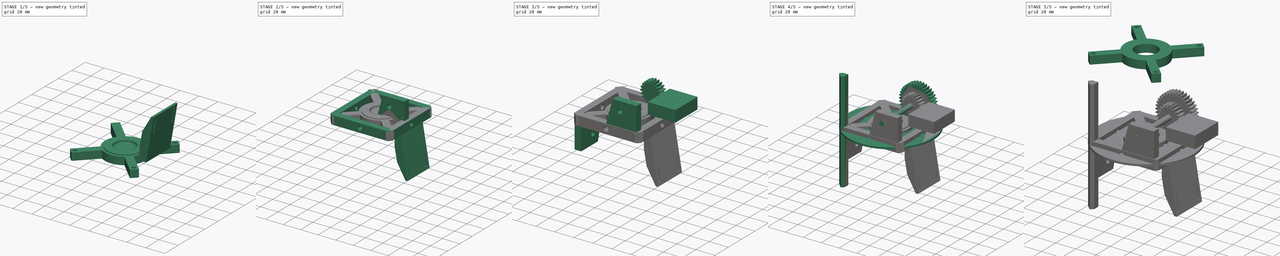
[diagram: build sequence overview — one tinted view per stage of 5, left to right]
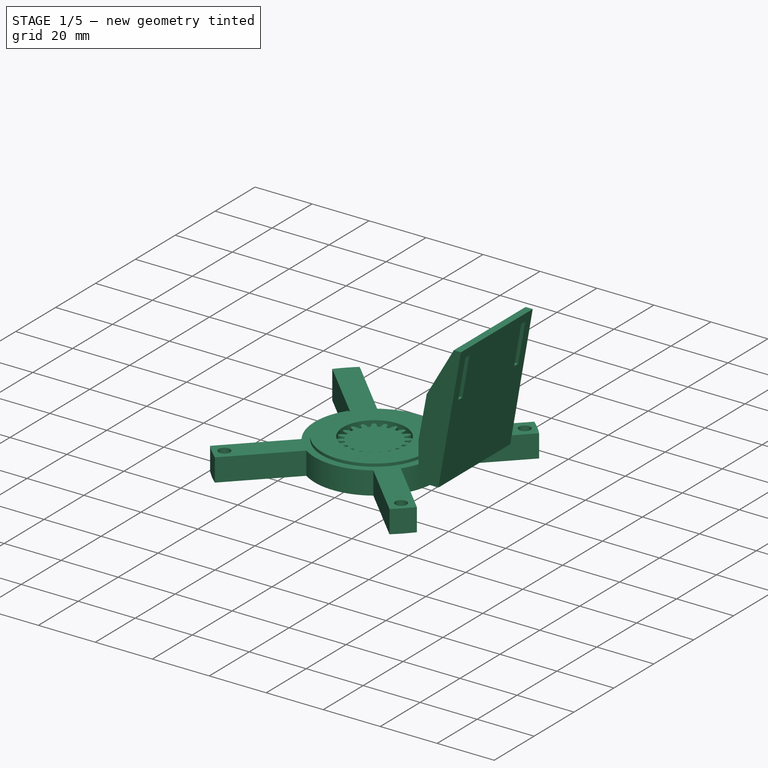
[diagram: stage 1 of 5 — iso view after this stage's code; geometry added in this stage tinted green]
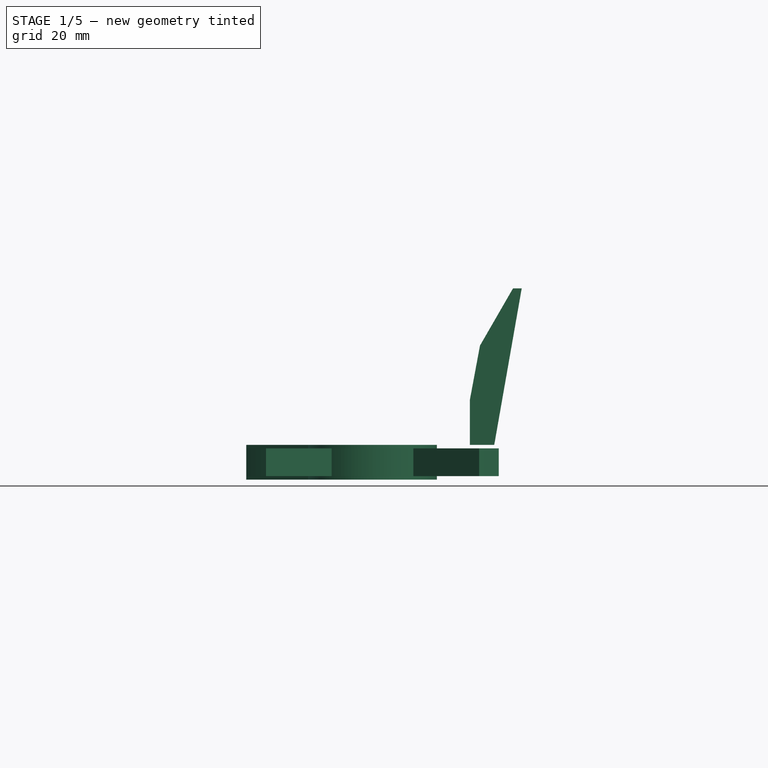
[diagram: stage 1 of 5 — front view after this stage's code; geometry added in this stage tinted green]
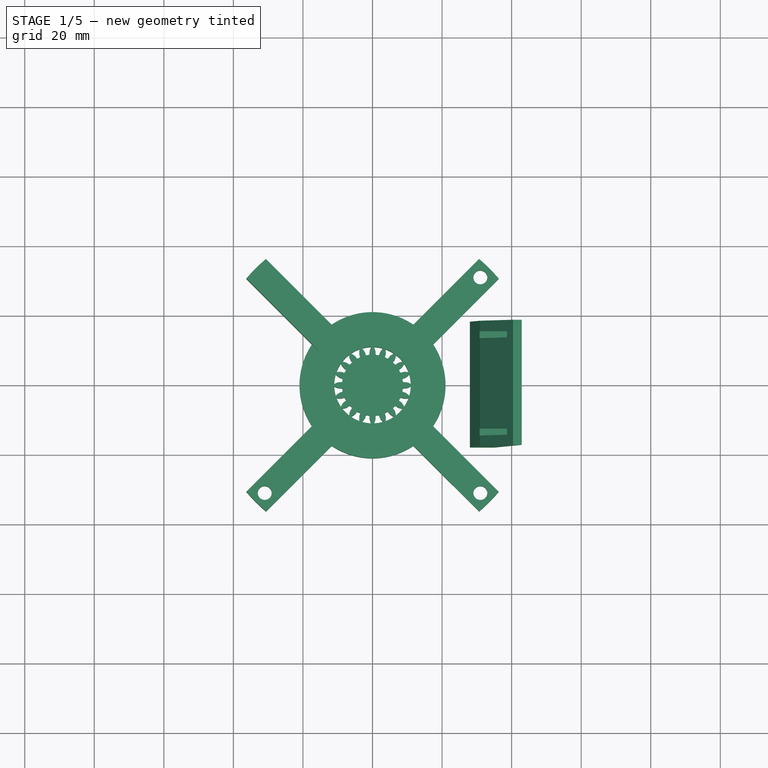
[diagram: stage 1 of 5 — top view after this stage's code; geometry added in this stage tinted green]
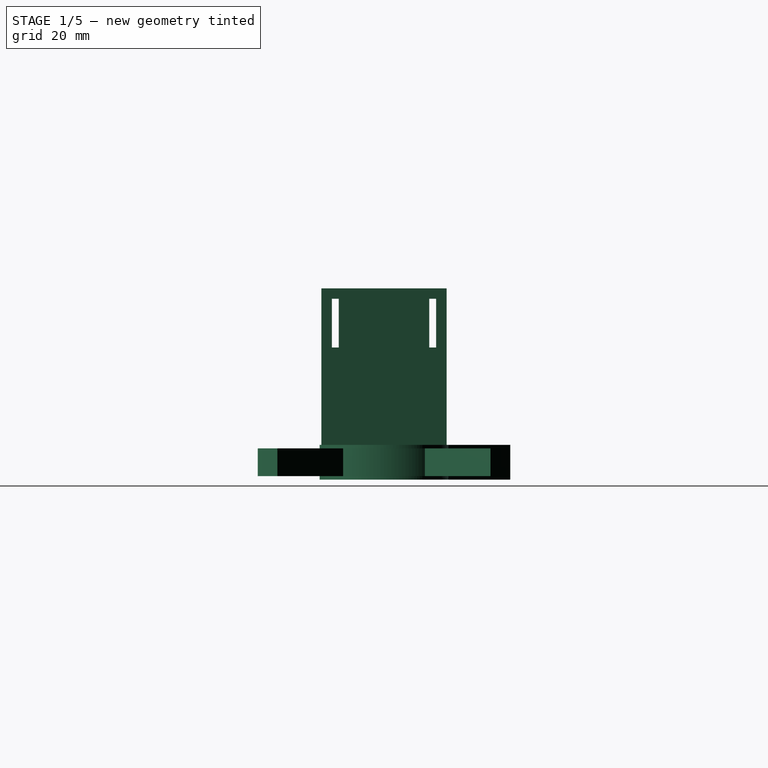
[diagram: stage 1 of 5 — right view after this stage's code; geometry added in this stage tinted green]
FCSTD DOCUMENT  (FreeCAD 0.21R33668 +26 (Git))
Label: capsule_support_engrenages_ailerons
License: All rights reserved
LicenseURL: http://en.wikipedia.org/wiki/All_rights_reserved
objects: PartDesign::Body×28, Sketcher::SketchObject×16, PartDesign::Pad×14, PartDesign::FeatureBase×14, PartDesign::Pocket×9, Part::Part2DObjectPython×7, App::Part×5, Part::Cylinder×2, Part::Box×2, App::DocumentObjectGroup×1, PartDesign::PolarPattern×1
note: 116 computed .brp shape members not serialized (recipe doc carries the construction recipe); baked Part::Feature solids carry a one-line shape summary decoded from their .brp

FEATURE [Sketcher::SketchObject] Sketch003
  FullyConstrained = true
  MapMode = 5
  Placement = pos=(-35,0,0) rot=(0,1,0;1.5708rad)
  sketch-geometry (1):
    g0: Circle CenterX=0 CenterY=0 CenterZ=0 NormalX=0 NormalY=0 NormalZ=1 AngleXU=0 Radius=2.5
  constraints (2):
    c: Coincident(g0,g-1)
    c: Radius(g0) = 2.5
FEATURE [Sketcher::SketchObject] Sketch004
  FullyConstrained = true
  MapMode = 5
  Placement = pos=(0,34.5,0) rot=(0,0.707107,0.707107;3.14159rad)
  sketch-geometry (1):
    g0: Circle CenterX=0 CenterY=0 CenterZ=0 NormalX=0 NormalY=0 NormalZ=1 AngleXU=0 Radius=2.5
  constraints (2):
    c: Coincident(g0,g-1)
    c: Radius(g0) = 2.5
FEATURE [Sketcher::SketchObject] Sketch011
  FullyConstrained = true
  MapMode = 5
  Support = -> [XY_Plane007]
  sketch-geometry (16):
    g0: ArcOfCircle CenterX=0 CenterY=0 CenterZ=0 NormalX=0 NormalY=0 NormalZ=1 AngleXU=0 Radius=21 StartAngle=5.68943 EndAngle=6.87694
    g1: LineSegment StartX=-30.6398 StartY=36.2967 StartZ=0 EndX=-11.749 EndY=17.4058 EndZ=0
    g2: LineSegment StartX=-36.2967 StartY=30.6398 StartZ=0 EndX=-17.4058 EndY=11.749 EndZ=0
    g3: LineSegment StartX=-36.2967 StartY=-30.6398 StartZ=0 EndX=-17.4058 EndY=-11.749 EndZ=0
    g4: LineSegment StartX=36.2967 StartY=30.6398 StartZ=0 EndX=17.4058 EndY=11.749 EndZ=0
    g5: LineSegment StartX=-11.749 StartY=-17.4058 StartZ=0 EndX=-30.6398 EndY=-36.2967 EndZ=0
    g6: LineSegment StartX=11.749 StartY=-17.4058 StartZ=0 EndX=30.6398 EndY=-36.2967 EndZ=0
    g7: LineSegment StartX=17.4058 StartY=-11.749 StartZ=0 EndX=36.2967 EndY=-30.6398 EndZ=0
    g8: ArcOfCircle CenterX=0 CenterY=0 CenterZ=0 NormalX=0 NormalY=0 NormalZ=1 AngleXU=0 Radius=21 StartAngle=0.977045 EndAngle=2.16455
    g9: LineSegment StartX=11.749 StartY=17.4058 StartZ=0 EndX=30.6398 EndY=36.2967 EndZ=0
    g10: ArcOfCircle CenterX=0 CenterY=0 CenterZ=0 NormalX=0 NormalY=0 NormalZ=1 AngleXU=0 Radius=21 StartAngle=2.54784 EndAngle=3.73534
    g11: ArcOfCircle CenterX=0 CenterY=0 CenterZ=0 NormalX=0 NormalY=0 NormalZ=1 AngleXU=0 Radius=21 StartAngle=4.11864 EndAngle=5.30614
    g12: ArcOfCircle CenterX=0 CenterY=0 CenterZ=0 NormalX=0 NormalY=0 NormalZ=1 AngleXU=0 Radius=47.5 StartAngle=3.84268 EndAngle=4.0113
    g13: ArcOfCircle CenterX=0 CenterY=0 CenterZ=0 NormalX=0 NormalY=0 NormalZ=1 AngleXU=0 Radius=47.5 StartAngle=5.41348 EndAngle=5.5821
    g14: ArcOfCircle CenterX=0 CenterY=0 CenterZ=0 NormalX=0 NormalY=0 NormalZ=1 AngleXU=0 Radius=47.5 StartAngle=0.701088 EndAngle=0.869709
    g15: ArcOfCircle CenterX=0 CenterY=0 CenterZ=0 NormalX=0 NormalY=0 NormalZ=1 AngleXU=0 Radius=47.5 StartAngle=2.27188 EndAngle=2.4405
  constraints (51):
    c: Radius(g0) = 21
    c: PointOnObject(g1,g0)
    c: PointOnObject(g2,g0)
    c: PointOnObject(g3,g0)
    c: PointOnObject(g5,g0)
    c: Coincident(g11,g6)
    c: Coincident(g0,g7)
    c: Coincident(g0,g8)
    c: Coincident(g4,g0)
    c: Coincident(g9,g8)
    c: Equal(g8,g10)
    c: PointOnObject(g8,g1)
    c: PointOnObject(g10,g2)
    c: Coincident(g8,g10)
    c: PointOnObject(g10,g3)
    c: PointOnObject(g11,g5)
    c: Coincident(g10,g11)
    c: Parallel(g2,g1)
    c: Parallel(g9,g4)
    c: Parallel(g3,g5)
    c: Parallel(g6,g7)
    c: Distance(g2,g1) = 8
    c: Distance(g9,g4) = 8
    c: Distance(g3,g5) = 8
    c: Distance(g6,g7) = 8
    c: Coincident(g0,g-1)
    c: Coincident(g12,g0)
    c: Radius(g12) = 47.5
    c: PointOnObject(g7,g12)
    c: Angle(g-2,g9) = 2.35619
    c: Angle(g1,g-2) = 2.35619
    c: Angle(g-1,g7) = 2.35619
    c: Angle(g3,g-1) = 2.35619
    c: Symmetric(g1,g8,g-2)
    c: Symmetric(g5,g6,g-2)
    c: Symmetric(g0,g0,g-1)
    c: Equal(g12,g13)
    c: Coincident(g13,g6)
    c: Coincident(g12,g13)
    c: Equal(g13,g14)
    c: PointOnObject(g13,g7)
    c: Coincident(g13,g14)
    c: Equal(g14,g15)
    c: Coincident(g14,g15)
    c: Coincident(g2,g15)
    c: Coincident(g4,g14)
    c: Coincident(g9,g14)
    c: Coincident(g3,g12)
    c: Coincident(g5,g12)
    c: Equal(g2,g1)
    c: Coincident(g15,g1)
FEATURE [PartDesign::Pad] Pad002
  Direction = (0,0,1)
  Length = 8
  Length2 = 10
  Midplane = true
  Profile = -> Sketch011
  ReferenceAxis = -> Sketch011 [N_Axis]
  Type = 0
FEATURE [Sketcher::SketchObject] Sketch012
  FullyConstrained = true
  MapMode = 5
  Support = -> [XY_Plane007]
  sketch-geometry (1):
    g0: Circle CenterX=0 CenterY=0 CenterZ=0 NormalX=0 NormalY=0 NormalZ=1 AngleXU=0 Radius=11
  constraints (2):
    c: Coincident(g0,g-1)
    c: Radius(g0) = 11
FEATURE [PartDesign::Pocket] Pocket008
  BaseFeature = -> Pad002
  Direction = (0,0,-1)
  Length = 5
  Length2 = 5
  Midplane = true
  Profile = -> Sketch012
  ReferenceAxis = -> Sketch012 [N_Axis]
  Type = 1
FEATURE [PartDesign::Body] Body  label="Cadre extérieur"
  Group = -> [Sketch,Pad,Sketch003,Sketch004,Sketch017,Pocket,Pocket010,Pocket011]
  Origin = -> Origin
  Tip = -> Pocket011
FEATURE [Sketcher::SketchObject] Sketch018
  FullyConstrained = true
  MapMode = 5
  Placement = pos=(0,0,0) rot=(1,0,0;1.5708rad)
  Support = -> [XZ_Plane048]
  sketch-geometry (6):
    g0: LineSegment StartX=28 StartY=5 StartZ=0 EndX=35 EndY=5 EndZ=0
    g1: LineSegment StartX=28 StartY=5 StartZ=0 EndX=28 EndY=18 EndZ=0
    g2: LineSegment StartX=28 StartY=18 StartZ=0 EndX=30.9 EndY=33.5455 EndZ=0
    g3: LineSegment StartX=30.9 StartY=33.5455 StartZ=0 EndX=40.4 EndY=50 EndZ=0
    g4: LineSegment StartX=42.9 StartY=50 StartZ=0 EndX=35 EndY=5 EndZ=0
    g5: LineSegment StartX=42.9 StartY=50 StartZ=0 EndX=40.4 EndY=50 EndZ=0
  constraints (18):
    c: Horizontal(g0)
    c: Distance(g0,g-2) = 28
    c: Distance(g0,g0) = 7
    c: Distance(g0,g-1) = 5
    c: Coincident(g1,g0)
    c: Vertical(g1)
    c: DistanceY(g1,g1) = 13
    c: Coincident(g2,g1)
    c: Coincident(g4,g0)
    c: Coincident(g5,g4)
    c: Coincident(g5,g3)
    c: Horizontal(g5)
    c: Distance(g3,g-1) = 50
    c: DistanceX(g5,g5) = 2.5
    c: Angle(g3,g-2) = 0.523599
    c: Distance(g3,g-2) = 40.4
    c: Distance(g3) = 19
    c: Coincident(g2,g3)
FEATURE [PartDesign::Pad] Pad014
  Direction = (0,-1,-2e-16)
  Length = 36
  Length2 = 10
  Midplane = true
  Placement = pos=(0,0,0) rot=(1,0,0;1.5708rad)
  Profile = -> Sketch018
  ReferenceAxis = -> Sketch018 [N_Axis]
  Type = 0
FEATURE [Sketcher::SketchObject] Sketch019
  FullyConstrained = true
  MapMode = 5
  Support = -> [XY_Plane052]
  sketch-geometry (5):
    g0: ArcOfCircle CenterX=0 CenterY=0 CenterZ=0 NormalX=0 NormalY=0 NormalZ=1 AngleXU=0 Radius=47.5 StartAngle=2.27188 EndAngle=2.4405
    g1: ArcOfCircle CenterX=0 CenterY=0 CenterZ=0 NormalX=0 NormalY=0 NormalZ=1 AngleXU=0 Radius=18.5 StartAngle=2.57413 EndAngle=8.42144
    g2: Circle CenterX=0 CenterY=0 CenterZ=0 NormalX=0 NormalY=0 NormalZ=1 AngleXU=0 Radius=11
    g3: LineSegment StartX=-30.6398 StartY=36.2967 StartZ=0 EndX=-9.94361 EndY=15.6005 EndZ=0
    g4: LineSegment StartX=-36.2967 StartY=30.6398 StartZ=0 EndX=-15.6005 EndY=9.94361 EndZ=0
  constraints (14):
    c: Coincident(g0,g-1)
    c: Radius(g0) = 47.5
    c: Coincident(g1,g0)
    c: Radius(g1) = 18.5
    c: Coincident(g2,g0)
    c: Radius(g2) = 11
    c: Coincident(g1,g4)
    c: Coincident(g1,g3)
    c: Coincident(g0,g4)
    c: Coincident(g0,g3)
    c: Angle(g-2,g4) = 0.785398
    c: Distance(g0,g0) = 8
    c: Angle(g3,g-2) = 2.35619
    c: Equal(g4,g3)
FEATURE [PartDesign::Pad] Pad015
  Direction = (0,0,1)
  Length = 10
  Length2 = 10
  Midplane = true
  Profile = -> Sketch019
  ReferenceAxis = -> Sketch019 [N_Axis]
  Type = 0
FEATURE [PartDesign::Body] Body044  label="Cadre intérieur"
  Group = -> [Sketch019,Pad015,Sketch020,Pocket012,Sketch021,Pocket013]
  Origin = -> Origin050
  Tip = -> Pocket013
FEATURE [Part::Part2DObjectPython] InvoluteGear007  # Draft 2D object (typed FeaturePython)
  AddendumCoefficient = 1
  DedendumCoefficient = 1.25
  ExternalGear = true
  HighPrecision = true
  Modules = 1
  NumberOfTeeth = 20
  PressureAngle = 20
  ProfileShiftCoefficient = 0
  RootFilletCoefficient = 0.375
FEATURE [PartDesign::Pad] Pad012
  Direction = (0,0,1)
  Length = 8
  Length2 = 10
  Midplane = true
  Profile = -> InvoluteGear007
  ReferenceAxis = -> InvoluteGear007 [N_Axis]
  Type = 0
FEATURE [PartDesign::Body] Body037  label="EngrenageA009"
  BaseFeature = -> Body036
  Group = -> [Clone013]
  Origin = -> Origin041
  Placement = pos=(42,-10,0) rot=(0,0,1;1.5708rad)
  Tip = -> Clone013
FEATURE [App::Part] Part003  label="Servo003"
  Group = -> [Box001,Body037]
  Origin = -> Origin042
  Placement = pos=(25,0,-2) rot=(0,1,0;-1.0472rad)
FEATURE [App::Part] Part002
  Group = -> [Body031,Body032,Body033,Body034,Body035,Cylinder001,Body036,Part003]
  Origin = -> Origin034
  Placement = pos=(0,0,0) rot=(0,0,1;1.5708rad)
FEATURE [App::Part] Part004  label="Ailerons CD"
  Group = -> [Part002]
  Origin = -> Origin043
  Placement = pos=(0,0,0) rot=(1,0,0;3.14159rad)
FEATURE [Sketcher::SketchObject] Sketch022
  FullyConstrained = true
  MapMode = 5
  Placement = pos=(0,0,0) rot=(0.57735,0.57735,0.57735;2.0944rad)
  Support = -> [YZ_Plane048]
  sketch-geometry (10):
    g0: LineSegment StartX=-13 StartY=47 StartZ=0 EndX=-13 EndY=33 EndZ=0
    g1: LineSegment StartX=-13 StartY=47 StartZ=0 EndX=-15 EndY=47 EndZ=0
    g2: LineSegment StartX=-15 StartY=47 StartZ=0 EndX=-15 EndY=33 EndZ=0
    g3: LineSegment StartX=-15 StartY=33 StartZ=0 EndX=-13 EndY=33 EndZ=0
    g4: LineSegment StartX=13 StartY=47 StartZ=0 EndX=15 EndY=47 EndZ=0
    g5: LineSegment StartX=15 StartY=47 StartZ=0 EndX=15 EndY=33 EndZ=0
    g6: LineSegment StartX=15 StartY=33 StartZ=0 EndX=13 EndY=33 EndZ=0
    g7: LineSegment StartX=13 StartY=33 StartZ=0 EndX=13 EndY=47 EndZ=0
    g8: GeomPoint X=15 Y=47 Z=0
    g9: GeomPoint X=-15 Y=47 Z=0
  constraints (26):
    c: Vertical(g0)
    c: Vertical(g2)
    c: Horizontal(g3)
    c: Distance(g0) = 14
    c: Horizontal(g1)
    c: Coincident(g0,g1)
    c: Distance(g1) = 2
    c: Coincident(g0,g3)
    c: Coincident(g1,g2)
    c: Coincident(g2,g3)
    c: Horizontal(g4)
    c: Vertical(g5)
    c: Horizontal(g6)
    c: Vertical(g7)
    c: Coincident(g4,g7)
    c: Coincident(g4,g5)
    c: Coincident(g5,g6)
    c: Coincident(g6,g7)
    c: Distance(g7) = 14
    c: Distance(g4) = 2
    c: Coincident(g4,g8)
    c: Coincident(g1,g9)
    c: DistanceY(g8,g9) = 0
    c: DistanceX(g9,g8) = 30
    c: DistanceX(g-1,g8) = 15
    c: DistanceY(g-1,g8) = 47
FEATURE [PartDesign::Pocket] Pocket014
  BaseFeature = -> Pad014
  Direction = (-1,2e-16,-3e-16)
  Length = 5
  Length2 = 5
  Midplane = true
  Placement = pos=(0,0,0) rot=(1,0,0;1.5708rad)
  Profile = -> Sketch022
  ReferenceAxis = -> Sketch022 [N_Axis]
  Type = 1
FEATURE [PartDesign::Body] Body043  label="Support servo 2"
  BaseFeature = -> Body042
  Group = -> [Clone017]
  Origin = -> Origin049
  Placement = pos=(0,0,0) rot=(0,0,-1;1.5708rad)
  Tip = -> Clone017
FEATURE [Sketcher::SketchObject] Sketch023
  FullyConstrained = true
  MapMode = 5
  Support = -> [XY_Plane007]
  sketch-geometry (1):
    g0: Circle CenterX=-31 CenterY=31 CenterZ=0 NormalX=0 NormalY=0 NormalZ=1 AngleXU=0 Radius=2
  constraints (3):
    c: Radius(g0) = 2
    c: DistanceX(g0,g-1) = 31
    c: DistanceY(g-1,g0) = 31
FEATURE [PartDesign::Pocket] Pocket015
  BaseFeature = -> Pocket008
  Direction = (0,0,-1)
  Length = 5
  Length2 = 5
  Midplane = true
  Profile = -> Sketch023
  ReferenceAxis = -> Sketch023 [N_Axis]
  Type = 1
FEATURE [PartDesign::PolarPattern] PolarPattern
  Angle = 360
  Axis = -> Z_Axis007
  BaseFeature = -> Pocket015
  Occurrences = 4
  Originals = -> [Pocket015]
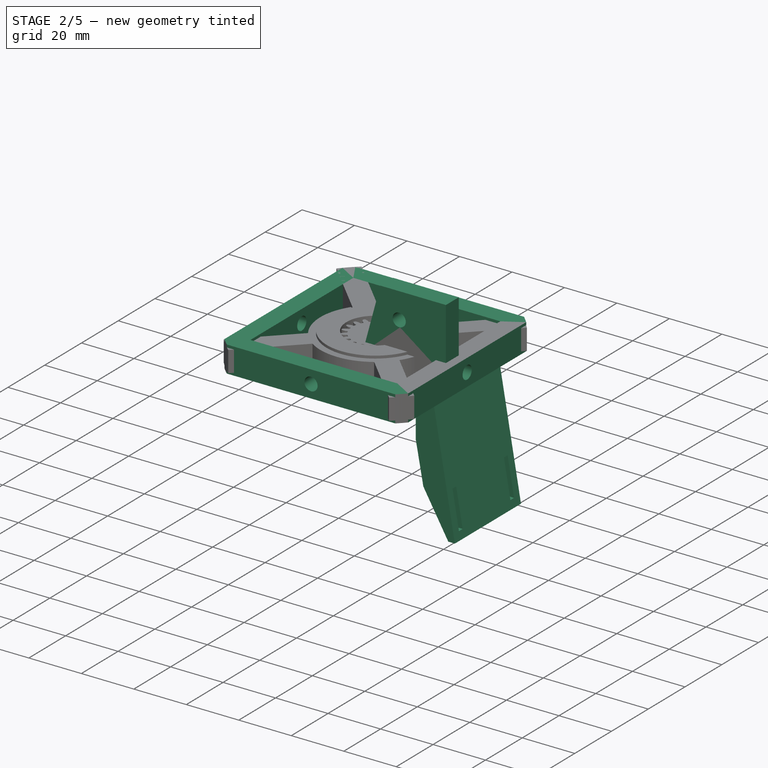
[diagram: stage 2 of 5 — iso view after this stage's code; geometry added in this stage tinted green]
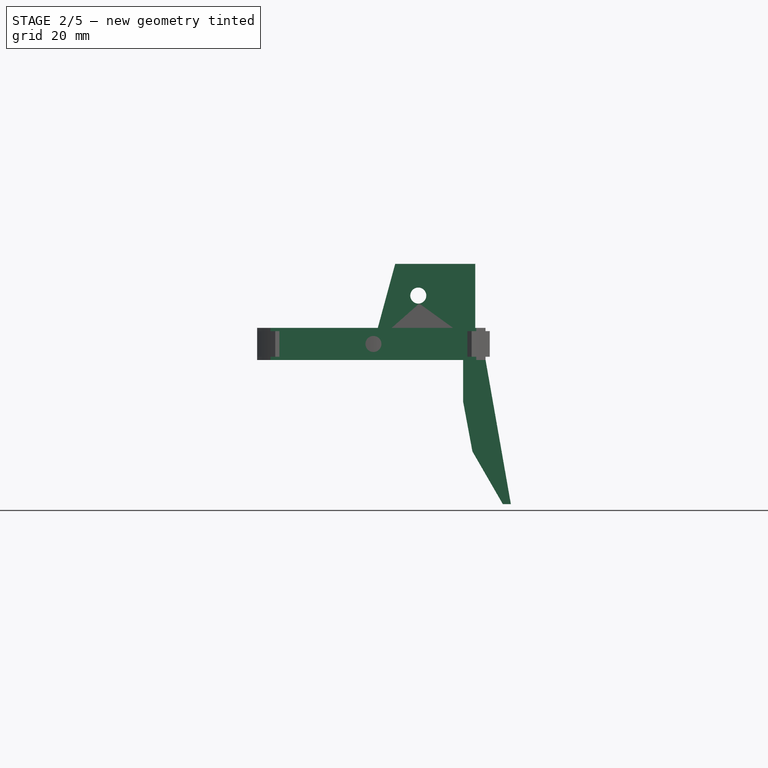
[diagram: stage 2 of 5 — front view after this stage's code; geometry added in this stage tinted green]
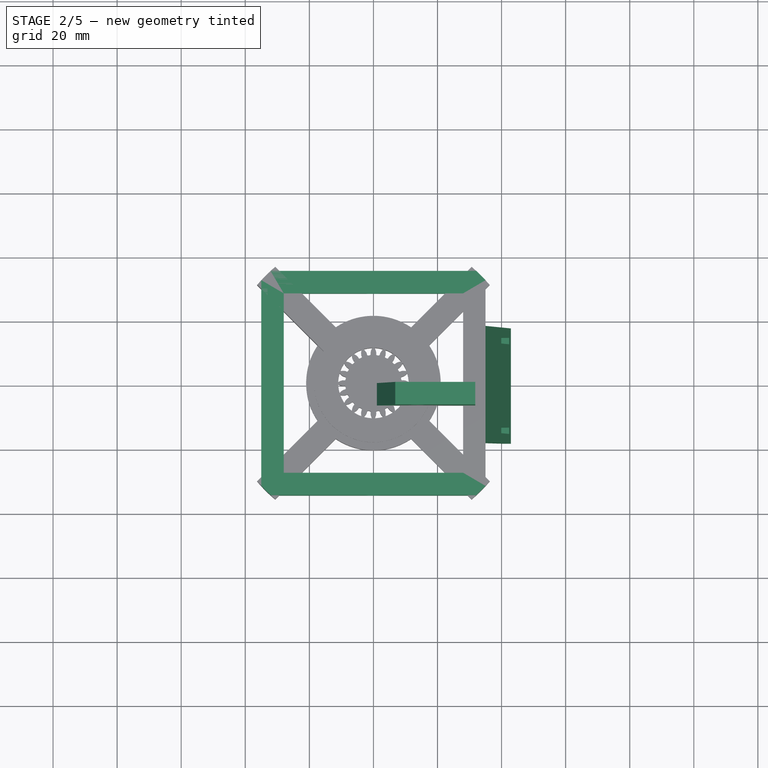
[diagram: stage 2 of 5 — top view after this stage's code; geometry added in this stage tinted green]
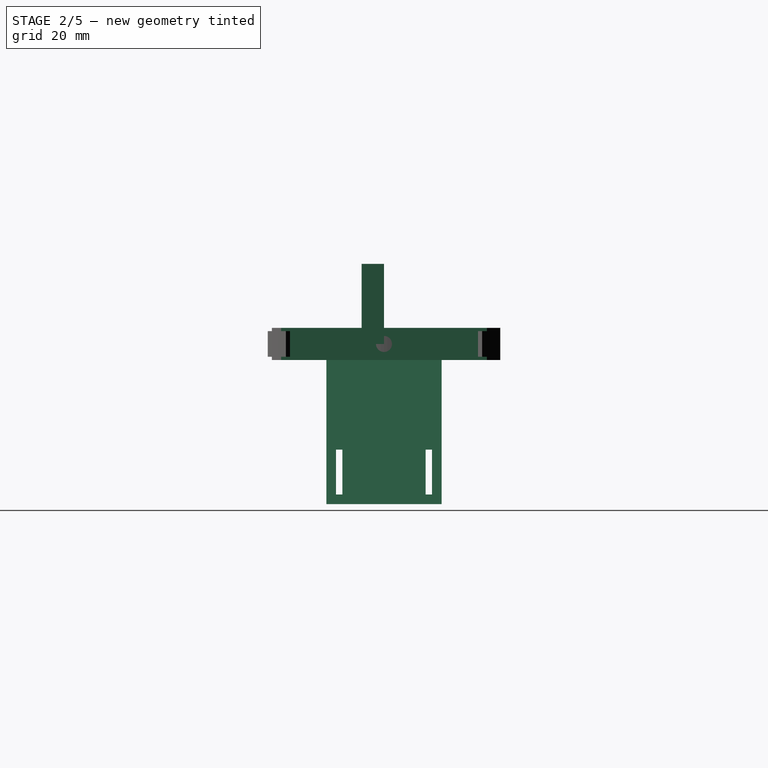
[diagram: stage 2 of 5 — right view after this stage's code; geometry added in this stage tinted green]
FEATURE [Sketcher::SketchObject] Sketch  label="Cadre extérieur sketch"
  FullyConstrained = true
  MapMode = 5
  Support = -> [XY_Plane]
  sketch-geometry (9):
    g0: LineSegment StartX=-35 StartY=32.1131 StartZ=0 EndX=-35 EndY=-32.1131 EndZ=0
    g1: LineSegment StartX=-32.1131 StartY=-35 StartZ=0 EndX=32.1131 EndY=-35 EndZ=0
    g2: LineSegment StartX=35 StartY=-32.1131 StartZ=0 EndX=35 EndY=32.1131 EndZ=0
    g3: LineSegment StartX=32.1131 StartY=35 StartZ=0 EndX=-32.1131 EndY=35 EndZ=0
    g4: GeomPoint X=0 Y=0 Z=0
    g5: ArcOfCircle CenterX=0 CenterY=0 CenterZ=0 NormalX=0 NormalY=0 NormalZ=1 AngleXU=0 Radius=47.5 StartAngle=2.31321 EndAngle=2.39918
    g6: ArcOfCircle CenterX=0 CenterY=0 CenterZ=0 NormalX=0 NormalY=0 NormalZ=1 AngleXU=0 Radius=47.5 StartAngle=3.884 EndAngle=3.96998
    g7: ArcOfCircle CenterX=0 CenterY=0 CenterZ=0 NormalX=0 NormalY=0 NormalZ=1 AngleXU=0 Radius=47.5 StartAngle=0.742409 EndAngle=0.828387
    g8: ArcOfCircle CenterX=0 CenterY=0 CenterZ=0 NormalX=0 NormalY=0 NormalZ=1 AngleXU=0 Radius=47.5 StartAngle=5.4548 EndAngle=5.54078
  constraints (25):
    c: Horizontal(g1)
    c: Horizontal(g3)
    c: Vertical(g0)
    c: Vertical(g2)
    c: Coincident(g4,g-1)
    c: Coincident(g5,g4)
    c: Radius(g5) = 47.5
    c: Equal(g5,g6)
    c: Coincident(g5,g6)
    c: Equal(g6,g7)
    c: Coincident(g6,g7)
    c: Equal(g6,g8)
    c: Coincident(g6,g8)
    c: Distance(g5,g3) = 35
    c: Distance(g5,g2) = 35
    c: Coincident(g0,g5)
    c: Coincident(g3,g5)
    c: Coincident(g3,g7)
    c: Coincident(g2,g7)
    c: Coincident(g2,g8)
    c: Coincident(g1,g8)
    c: Coincident(g0,g6)
    c: Coincident(g1,g6)
    c: Distance(g5,g1) = 35
    c: Distance(g5,g0) = 35
FEATURE [PartDesign::Pad] Pad  label="Forme cadre extérieur"
  Direction = (0,0,1)
  Length = 10
  Length2 = 10
  Midplane = true
  Profile = -> Sketch
  ReferenceAxis = -> Sketch [N_Axis]
  Type = 0
FEATURE [Sketcher::SketchObject] Sketch015
  FullyConstrained = true
  MapMode = 5
  Placement = pos=(0,0,0) rot=(1,0,0;1.5708rad)
  Support = -> [XZ_Plane044]
  sketch-geometry (4):
    g0: LineSegment StartX=0 StartY=0 StartZ=0 EndX=31.8 EndY=0 EndZ=0
    g1: LineSegment StartX=31.8 StartY=0 StartZ=0 EndX=31.8 EndY=25 EndZ=0
    g2: LineSegment StartX=31.8 StartY=25 StartZ=0 EndX=6.8 EndY=25 EndZ=0
    g3: LineSegment StartX=6.8 StartY=25 StartZ=0 EndX=0 EndY=0 EndZ=0
  constraints (11):
    c: Coincident(g0,g-1)
    c: Horizontal(g0)
    c: DistanceX(g0,g0) = 31.8
    c: Coincident(g1,g0)
    c: Vertical(g1)
    c: DistanceY(g1,g1) = 25
    c: Coincident(g2,g1)
    c: DistanceX(g2,g2) = 25
    c: Horizontal(g2)
    c: Coincident(g3,g2)
    c: Coincident(g3,g0)
FEATURE [PartDesign::Pad] Pad013
  Direction = (0,-1,-2e-16)
  Length = 7
  Length2 = 10
  Placement = pos=(0,0,0) rot=(1,0,0;1.5708rad)
  Profile = -> Sketch015
  ReferenceAxis = -> Sketch015 [N_Axis]
  Type = 0
FEATURE [Sketcher::SketchObject] Sketch016
  AttachmentOffset = pos=(14,20.1,10) rot=(0,0,1;0rad)
  FullyConstrained = false
  MapMode = 5
  Placement = pos=(14,-10,20.1) rot=(1,0,0;1.5708rad)
  Support = -> [XZ_Plane044]
  sketch-geometry (1):
    g0: Circle CenterX=0 CenterY=-4.99799 CenterZ=0 NormalX=0 NormalY=0 NormalZ=1 AngleXU=0 Radius=2.5
  constraints (2):
    c: PointOnObject(g0,g-2)
    c: Radius(g0) = 2.5
FEATURE [PartDesign::Pocket] Pocket009
  BaseFeature = -> Pad013
  Direction = (0,1,2e-16)
  Length = 5
  Length2 = 5
  Placement = pos=(0,0,0) rot=(1,0,0;1.5708rad)
  Profile = -> Sketch016
  ReferenceAxis = -> Sketch016 [N_Axis]
  Type = 1
FEATURE [PartDesign::Body] Body041  label="Support d'axes 4"
  BaseFeature = -> Body040
  Group = -> [Clone016]
  Origin = -> Origin047
  Placement = pos=(63,0,0) rot=(0,0,1;0rad)
  Tip = -> Clone016
FEATURE [Sketcher::SketchObject] Sketch017
  FullyConstrained = true
  MapMode = 5
  Support = -> [XY_Plane]
  sketch-geometry (5):
    g0: LineSegment StartX=-28 StartY=-28 StartZ=0 EndX=-28 EndY=28 EndZ=0
    g1: LineSegment StartX=-28 StartY=28 StartZ=0 EndX=28 EndY=28 EndZ=0
    g2: LineSegment StartX=28 StartY=28 StartZ=0 EndX=28 EndY=-28 EndZ=0
    g3: LineSegment StartX=28 StartY=-28 StartZ=0 EndX=-28 EndY=-28 EndZ=0
    g4: GeomPoint X=0 Y=0 Z=0
  constraints (12):
    c: Coincident(g0,g1)
    c: Coincident(g1,g2)
    c: Coincident(g2,g3)
    c: Coincident(g3,g0)
    c: Horizontal(g1)
    c: Horizontal(g3)
    c: Vertical(g0)
    c: Vertical(g2)
    c: Symmetric(g1,g0,g4)
    c: Coincident(g4,g-1)
    c: Distance(g4,g1) = 28
    c: Distance(g4,g2) = 28
FEATURE [PartDesign::Pocket] Pocket  label="Trou cadre extérieur"
  BaseFeature = -> Pad
  Direction = (0,0,-1)
  Length = 5
  Length2 = 5
  Midplane = true
  Profile = -> Sketch017
  ReferenceAxis = -> Sketch017 [N_Axis]
  Type = 1
FEATURE [PartDesign::Pocket] Pocket010  label="Trou axe 1"
  BaseFeature = -> Pocket
  Direction = (0,-1,2e-16)
  Length = 5
  Length2 = 5
  Midplane = true
  Profile = -> Sketch004
  ReferenceAxis = -> Sketch004 [N_Axis]
  Type = 1
FEATURE [PartDesign::Pocket] Pocket011  label="Trou axe 2"
  BaseFeature = -> Pocket010
  Direction = (-1,0,-2e-16)
  Length = 5
  Length2 = 5
  Midplane = true
  Profile = -> Sketch003
  ReferenceAxis = -> Sketch003 [N_Axis]
  Type = 1
FEATURE [Sketcher::SketchObject] Sketch020
  FullyConstrained = true
  MapMode = 5
  Placement = pos=(0,34.5,0) rot=(0,0.707107,0.707107;3.14159rad)
  sketch-geometry (1):
    g0: Circle CenterX=0 CenterY=0 CenterZ=0 NormalX=0 NormalY=0 NormalZ=1 AngleXU=0 Radius=2.5
  constraints (2):
    c: Coincident(g0,g-1)
    c: Radius(g0) = 2.5
FEATURE [PartDesign::Pocket] Pocket012  label="Trou axe 3"
  BaseFeature = -> Pad015
  Direction = (0,-1,2e-16)
  Length = 5
  Length2 = 5
  Midplane = true
  Profile = -> Sketch020
  ReferenceAxis = -> Sketch020 [N_Axis]
  Type = 1
FEATURE [Sketcher::SketchObject] Sketch021
  FullyConstrained = true
  MapMode = 5
  Placement = pos=(-35,0,0) rot=(0,1,0;1.5708rad)
  sketch-geometry (1):
    g0: Circle CenterX=0 CenterY=0 CenterZ=0 NormalX=0 NormalY=0 NormalZ=1 AngleXU=0 Radius=2.5
  constraints (2):
    c: Coincident(g0,g-1)
    c: Radius(g0) = 2.5
FEATURE [PartDesign::Pocket] Pocket013  label="Trou axe 4"
  BaseFeature = -> Pocket012
  Direction = (-1,0,-2e-16)
  Length = 5
  Length2 = 5
  Midplane = true
  Profile = -> Sketch021
  ReferenceAxis = -> Sketch021 [N_Axis]
  Type = 1
FEATURE [PartDesign::Body] Body042  label="Support servo 1"
  Group = -> [Sketch018,Pad014,Sketch022,Pocket014]
  Origin = -> Origin048
  Tip = -> Pocket014
FEATURE [PartDesign::FeatureBase] Clone017
  BaseFeature = -> Body042
  Placement = pos=(0,0,0) rot=(1,0,0;3.14159rad)
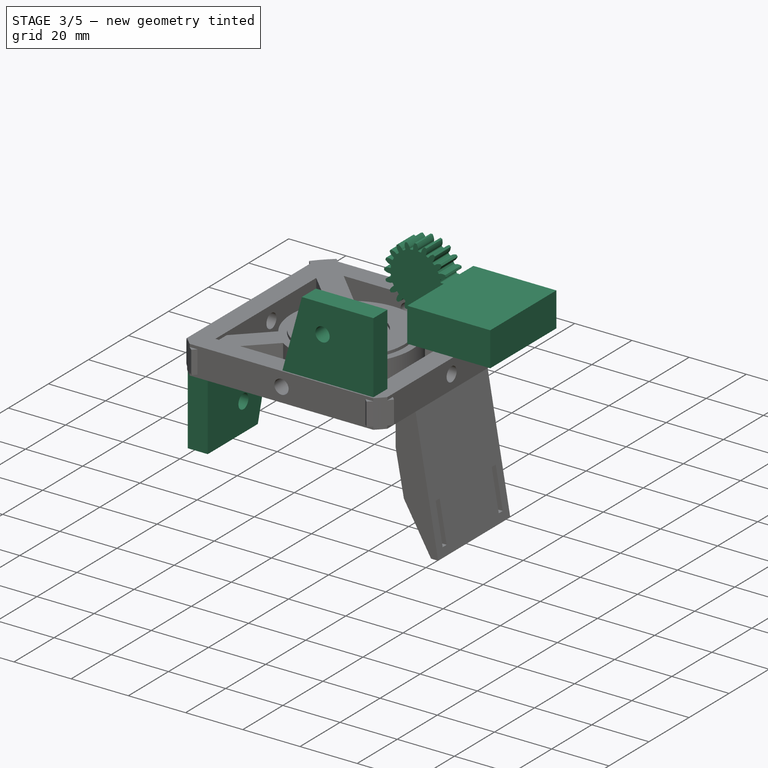
[diagram: stage 3 of 5 — iso view after this stage's code; geometry added in this stage tinted green]
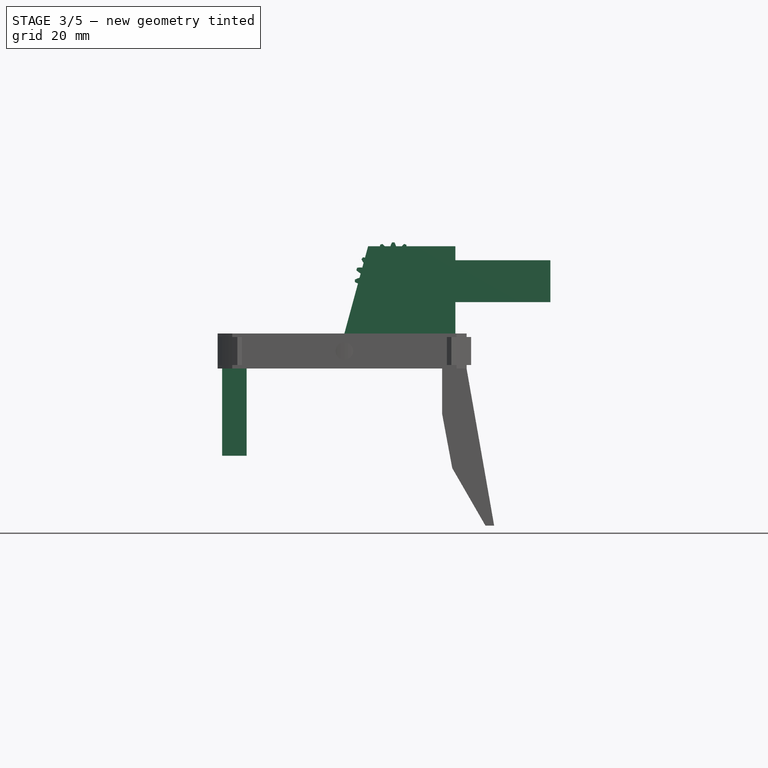
[diagram: stage 3 of 5 — front view after this stage's code; geometry added in this stage tinted green]
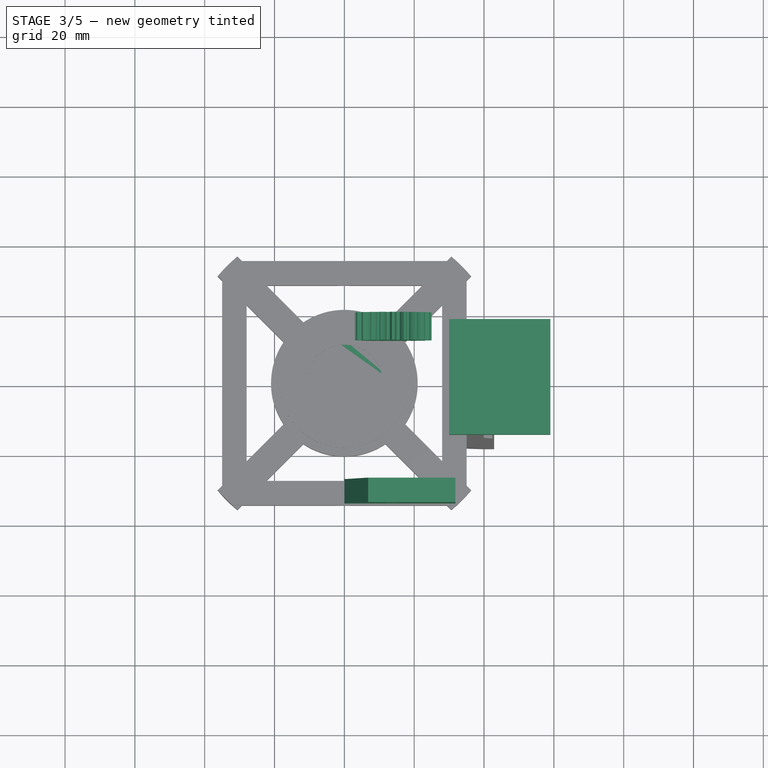
[diagram: stage 3 of 5 — top view after this stage's code; geometry added in this stage tinted green]
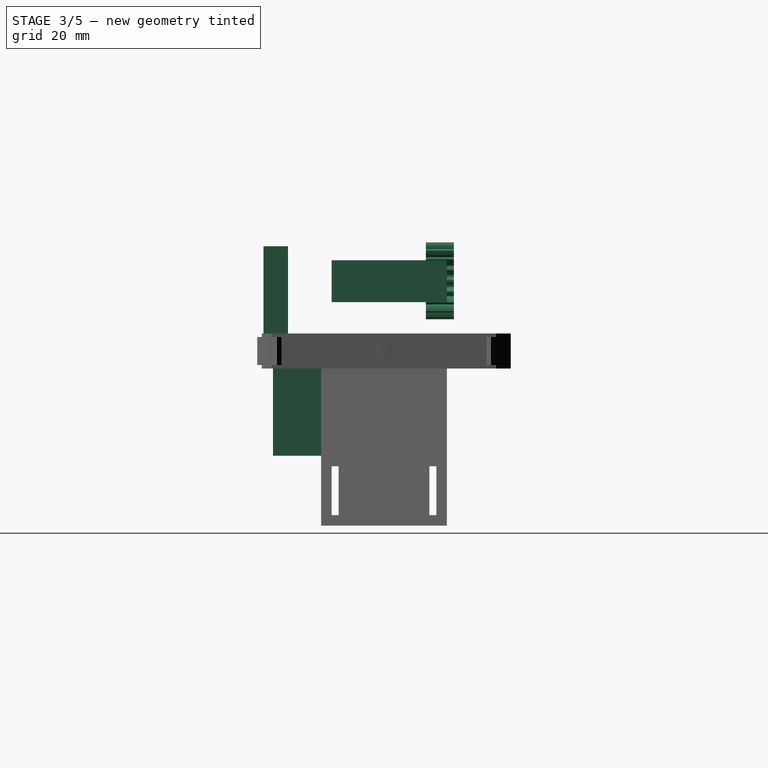
[diagram: stage 3 of 5 — right view after this stage's code; geometry added in this stage tinted green]
FEATURE [Part::Part2DObjectPython] InvoluteGear004  # Draft 2D object (typed FeaturePython)
  AddendumCoefficient = 1
  DedendumCoefficient = 1.25
  ExternalGear = true
  HighPrecision = true
  Modules = 1
  NumberOfTeeth = 12
  PressureAngle = 20
  ProfileShiftCoefficient = 0
  RootFilletCoefficient = 0.375
FEATURE [Part::Part2DObjectPython] InvoluteGear005  # Draft 2D object (typed FeaturePython)
  AddendumCoefficient = 1
  DedendumCoefficient = 1.25
  ExternalGear = true
  HighPrecision = true
  Modules = 1
  NumberOfTeeth = 36
  PressureAngle = 20
  ProfileShiftCoefficient = 0
  RootFilletCoefficient = 0.375
FEATURE [Part::Part2DObjectPython] InvoluteGear006  # Draft 2D object (typed FeaturePython)
  AddendumCoefficient = 1
  DedendumCoefficient = 1.25
  ExternalGear = true
  HighPrecision = true
  Modules = 1
  NumberOfTeeth = 20
  PressureAngle = 20
  ProfileShiftCoefficient = 0
  RootFilletCoefficient = 0.375
FEATURE [PartDesign::Pad] Pad009
  Direction = (0,0,1)
  Length = 8
  Length2 = 10
  Midplane = true
  Profile = -> InvoluteGear004
  ReferenceAxis = -> InvoluteGear004 [N_Axis]
  Type = 0
FEATURE [PartDesign::Body] Body032  label="EngrenageB003"
  BaseFeature = -> Body031
  Group = -> [Clone011]
  Origin = -> Origin036
  Placement = pos=(0,0,0) rot=(0,0,1;3.14159rad)
  Tip = -> Clone011
FEATURE [PartDesign::Pad] Pad010
  Direction = (0,0,1)
  Length = 8
  Length2 = 10
  Midplane = true
  Profile = -> InvoluteGear005
  ReferenceAxis = -> InvoluteGear005 [N_Axis]
  Type = 0
FEATURE [PartDesign::Body] Body034  label="EngrenageB004"
  BaseFeature = -> Body033
  Group = -> [Clone012]
  Origin = -> Origin038
  Placement = pos=(0,-48,0) rot=(0,0,1;0rad)
  Tip = -> Clone012
FEATURE [PartDesign::Pad] Pad011
  Direction = (0,0,1)
  Length = 8
  Length2 = 10
  Midplane = true
  Profile = -> InvoluteGear006
  ReferenceAxis = -> InvoluteGear006 [N_Axis]
  Type = 0
FEATURE [PartDesign::Body] Body035  label="EngrenageA007"
  Group = -> [InvoluteGear006,Pad011]
  Origin = -> Origin039
  Placement = pos=(14,16,20.1) rot=(1,0,0;1.5708rad)
  Tip = -> Pad011
FEATURE [Part::Box] Box001  label="Servo002"
  AttacherType = Attacher::AttachEngine3D
  Height = 12
  Length = 29
  Placement = pos=(30,-15,14) rot=(0,0,1;0rad)
  Width = 33
FEATURE [PartDesign::Body] Body038  label="Support d'axes 1"
  Group = -> [Sketch015,Pad013,Sketch016,Pocket009]
  Origin = -> Origin044
  Placement = pos=(0,-28,5) rot=(0,0,1;0rad)
  Tip = -> Pocket009
FEATURE [PartDesign::FeatureBase] Clone014
  BaseFeature = -> Body038
  Placement = pos=(0,-27.5,5) rot=(0,0,1;0rad)
FEATURE [PartDesign::Body] Body039  label="Support d'axes 2"
  BaseFeature = -> Body038
  Group = -> [Clone014]
  Origin = -> Origin045
  Placement = pos=(0,62.5,0) rot=(0,0,1;0rad)
  Tip = -> Clone014
FEATURE [PartDesign::FeatureBase] Clone015
  BaseFeature = -> Body038
  Placement = pos=(0,-28,5) rot=(1,0,0;3.14159rad)
FEATURE [PartDesign::Body] Body040  label="Support d'axes 3"
  BaseFeature = -> Body038
  Group = -> [Clone015]
  Origin = -> Origin046
  Placement = pos=(-7,0,-10) rot=(0,0,-1;1.5708rad)
  Tip = -> Clone015
FEATURE [PartDesign::FeatureBase] Clone016
  BaseFeature = -> Body040
  Placement = pos=(-7,0,-10) rot=(0,0,-1;1.5708rad)
FEATURE [PartDesign::Body] Body036  label="EngrenageA008"
  Group = -> [InvoluteGear007,Pad012]
  Origin = -> Origin040
  Placement = pos=(14,16,20.1) rot=(1,0,0;1.5708rad)
  Tip = -> Pad012
FEATURE [PartDesign::FeatureBase] Clone013
  BaseFeature = -> Body036
  Placement = pos=(14,16,20.1) rot=(1,0,0;1.5708rad)
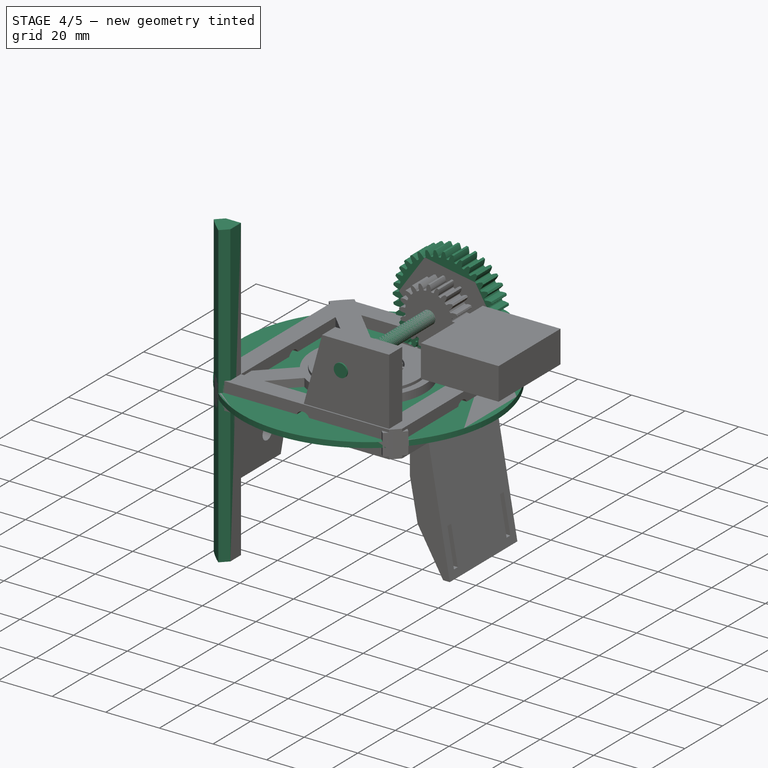
[diagram: stage 4 of 5 — iso view after this stage's code; geometry added in this stage tinted green]
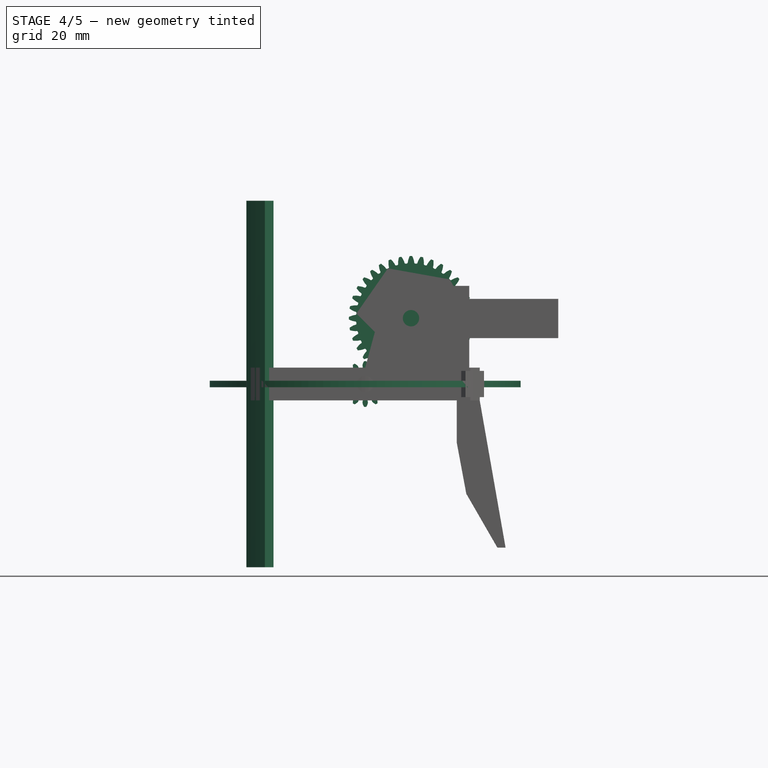
[diagram: stage 4 of 5 — front view after this stage's code; geometry added in this stage tinted green]
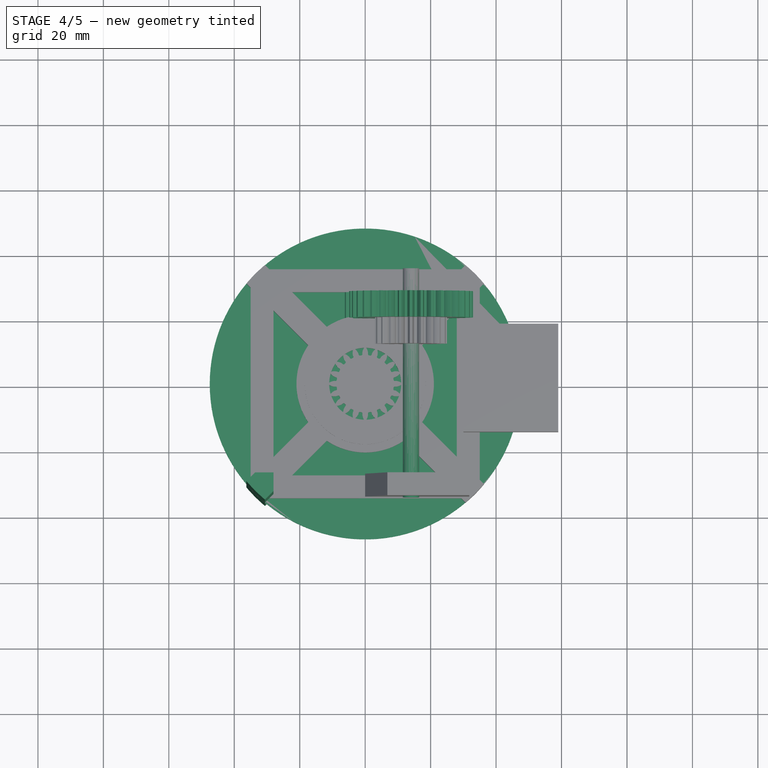
[diagram: stage 4 of 5 — top view after this stage's code; geometry added in this stage tinted green]
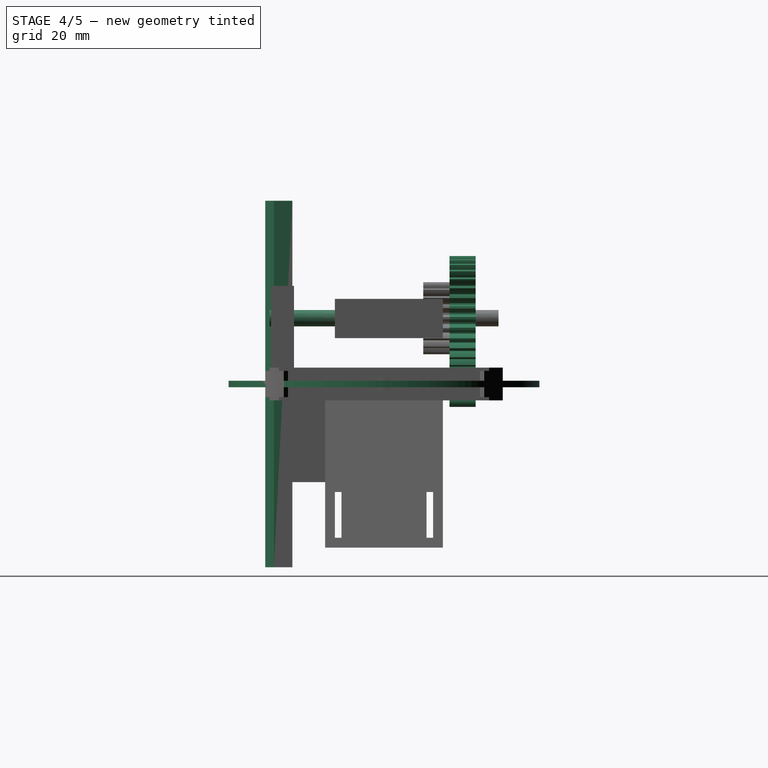
[diagram: stage 4 of 5 — right view after this stage's code; geometry added in this stage tinted green]
FEATURE [PartDesign::Body] Body023  label="EngrenageB2"
  BaseFeature = -> Body022
  Group = -> [Clone007]
  Origin = -> Origin025
  Placement = pos=(0,-48,0) rot=(0,0,1;0rad)
  Tip = -> Clone007
FEATURE [Sketcher::SketchObject] Sketch013
  FullyConstrained = true
  MapMode = 5
  Support = -> [XY_Plane026]
  sketch-geometry (5):
    g0: LineSegment StartX=-33.6569 StartY=-28 StartZ=0 EndX=-28 EndY=-28 EndZ=0
    g1: LineSegment StartX=-28 StartY=-28 StartZ=0 EndX=-28 EndY=-33.6569 EndZ=0
    g2: LineSegment StartX=-28 StartY=-33.6569 StartZ=0 EndX=-30.6398 EndY=-36.2967 EndZ=0
    g3: LineSegment StartX=-36.2967 StartY=-30.6398 StartZ=0 EndX=-33.6569 EndY=-28 EndZ=0
    g4: ArcOfCircle CenterX=0 CenterY=0 CenterZ=0 NormalX=0 NormalY=0 NormalZ=1 AngleXU=0 Radius=47.5 StartAngle=3.84268 EndAngle=4.0113
  constraints (15):
    c: Coincident(g1,g0)
    c: Coincident(g2,g1)
    c: Coincident(g3,g0)
    c: Radius(g4) = 47.5
    c: Parallel(g3,g2)
    c: Angle(g-1,g2) = 0.785398
    c: Vertical(g1)
    c: Horizontal(g0)
    c: Equal(g0,g1)
    c: Coincident(g3,g4)
    c: Coincident(g2,g4)
    c: Distance(g0,g1) = 8
    c: Coincident(g4,g-1)
    c: Distance(g0,g-1) = 28
    c: Distance(g0,g-2) = 28
FEATURE [PartDesign::Pad] Pad006
  Direction = (0,0,1)
  Length = 112
  Length2 = 10
  Midplane = true
  Profile = -> Sketch013
  ReferenceAxis = -> Sketch013 [N_Axis]
  Type = 0
FEATURE [PartDesign::Body] Body026  label="Montant3"
  BaseFeature = -> Body024
  Group = -> [Clone009]
  Origin = -> Origin028
  Placement = pos=(0,0,0) rot=(0,0,1;3.14159rad)
  Tip = -> Clone009
FEATURE [PartDesign::FeatureBase] Clone010
  BaseFeature = -> Body024
FEATURE [PartDesign::Body] Body027  label="Montant4"
  BaseFeature = -> Body024
  Group = -> [Clone010]
  Origin = -> Origin029
  Placement = pos=(0,0,0) rot=(0,0,-1;1.5708rad)
  Tip = -> Clone010
FEATURE [Part::Part2DObjectPython] InvoluteGear003  # Draft 2D object (typed FeaturePython)
  AddendumCoefficient = 1
  DedendumCoefficient = 1.25
  ExternalGear = true
  HighPrecision = true
  Modules = 1
  NumberOfTeeth = 20
  PressureAngle = 20
  ProfileShiftCoefficient = 0
  RootFilletCoefficient = 0.375
FEATURE [PartDesign::Pad] Pad007
  Direction = (0,0,1)
  Length = 8
  Length2 = 10
  Midplane = true
  Profile = -> InvoluteGear003
  ReferenceAxis = -> InvoluteGear003 [N_Axis]
  Type = 0
FEATURE [PartDesign::Body] Body028  label="EngrenageA3"
  Group = -> [InvoluteGear003,Pad007]
  Origin = -> Origin030
  Placement = pos=(14,16,20.1) rot=(1,0,0;1.5708rad)
  Tip = -> Pad007
FEATURE [Sketcher::SketchObject] Sketch014
  FullyConstrained = true
  MapMode = 5
  Support = -> [XY_Plane033]
  sketch-geometry (1):
    g0: Circle CenterX=0 CenterY=0 CenterZ=0 NormalX=0 NormalY=0 NormalZ=1 AngleXU=0 Radius=47.5
  constraints (2):
    c: Coincident(g0,g-1)
    c: Radius(g0) = 47.5
FEATURE [PartDesign::Pad] Pad008
  Direction = (0,0,1)
  Length = 2
  Length2 = 10
  Midplane = true
  Profile = -> Sketch014
  ReferenceAxis = -> Sketch014 [N_Axis]
  Type = 0
FEATURE [PartDesign::Body] Body029  label="Gabarit"
  Group = -> [Sketch014,Pad008]
  Origin = -> Origin031
  Tip = -> Pad008
FEATURE [PartDesign::FeatureBase] Clone
  BaseFeature = -> Body028
  Placement = pos=(14,16,20.1) rot=(1,0,0;1.5708rad)
FEATURE [PartDesign::Body] Body030  label="EngrenageA4"
  BaseFeature = -> Body028
  Group = -> [Clone]
  Origin = -> Origin032
  Placement = pos=(42,-10,0) rot=(0,0,1;1.5708rad)
  Tip = -> Clone
FEATURE [Part::Box] Box  label="Servo"
  AttacherType = Attacher::AttachEngine3D
  Height = 12
  Length = 29
  Placement = pos=(30,-15,14) rot=(0,0,1;0rad)
  Width = 33
FEATURE [App::Part] Part001  label="Servo1"
  Group = -> [Box,Body030]
  Origin = -> Origin033
  Placement = pos=(25,0,-2) rot=(0,1,0;-1.0472rad)
FEATURE [App::DocumentObjectGroup] Group  label="Ailerons AB"
  Group = -> [Body007,Body011,Cylinder,Body022,Body023,Body028,Part001]
FEATURE [Part::Cylinder] Cylinder001  label="Axe AB002"
  Angle = 360
  AttacherType = Attacher::AttachEngine3D
  FirstAngle = 0
  Height = 70
  Placement = pos=(14,35,20.1) rot=(1,0,0;1.5708rad)
  Radius = 2.5
  SecondAngle = 0
FEATURE [PartDesign::Body] Body031  label="EngrenageA005"
  Group = -> [InvoluteGear004,Pad009]
  Origin = -> Origin035
  Placement = pos=(0,24,0) rot=(1,0,0;1.5708rad)
  Tip = -> Pad009
FEATURE [PartDesign::FeatureBase] Clone011
  BaseFeature = -> Body031
  Placement = pos=(0,24,0) rot=(1,0,0;1.5708rad)
FEATURE [PartDesign::Body] Body033  label="EngrenageA006"
  Group = -> [InvoluteGear005,Pad010]
  Origin = -> Origin037
  Placement = pos=(14,24,20.1) rot=(1,0,0;1.5708rad)
  Tip = -> Pad010
FEATURE [PartDesign::FeatureBase] Clone012
  BaseFeature = -> Body033
  Placement = pos=(14,24,20.1) rot=(1,0,0;1.5708rad)
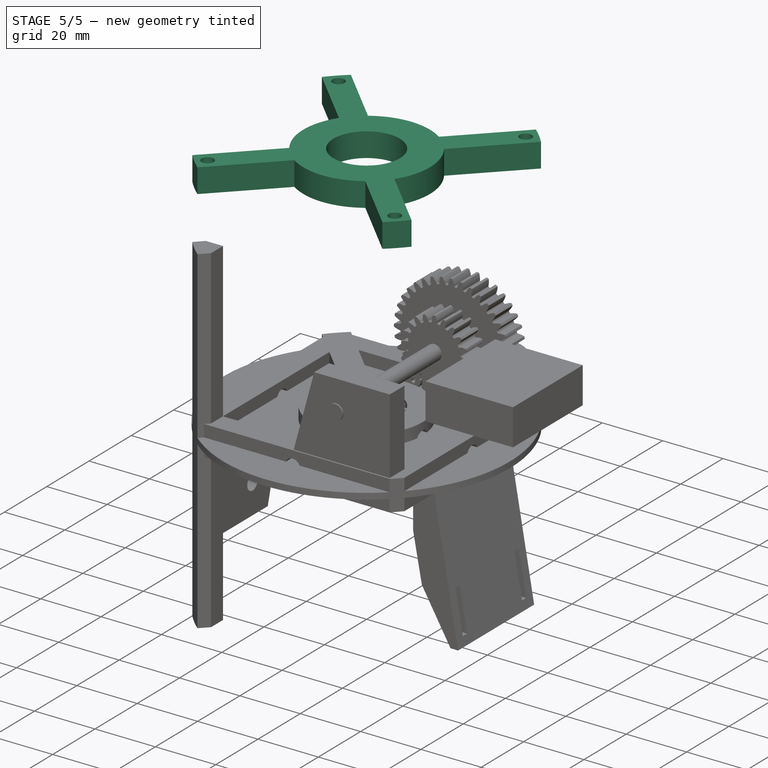
[diagram: stage 5 of 5 — iso view after this stage's code; geometry added in this stage tinted green]
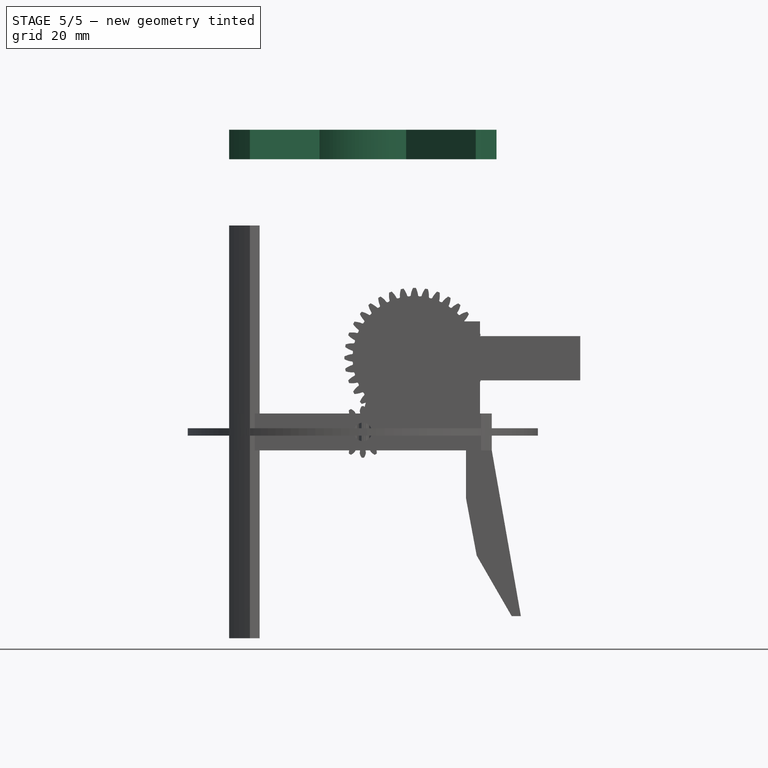
[diagram: stage 5 of 5 — front view after this stage's code; geometry added in this stage tinted green]
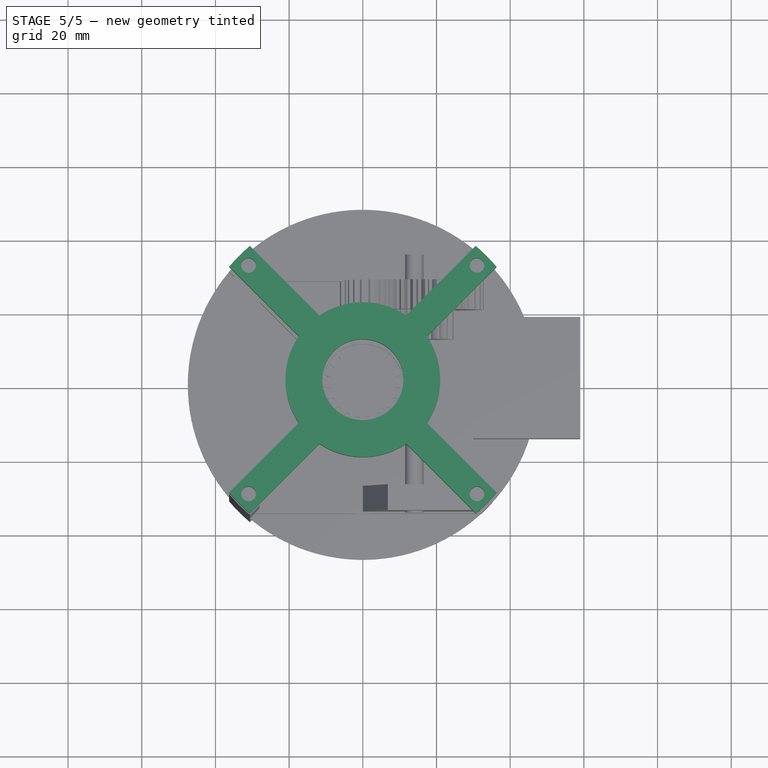
[diagram: stage 5 of 5 — top view after this stage's code; geometry added in this stage tinted green]
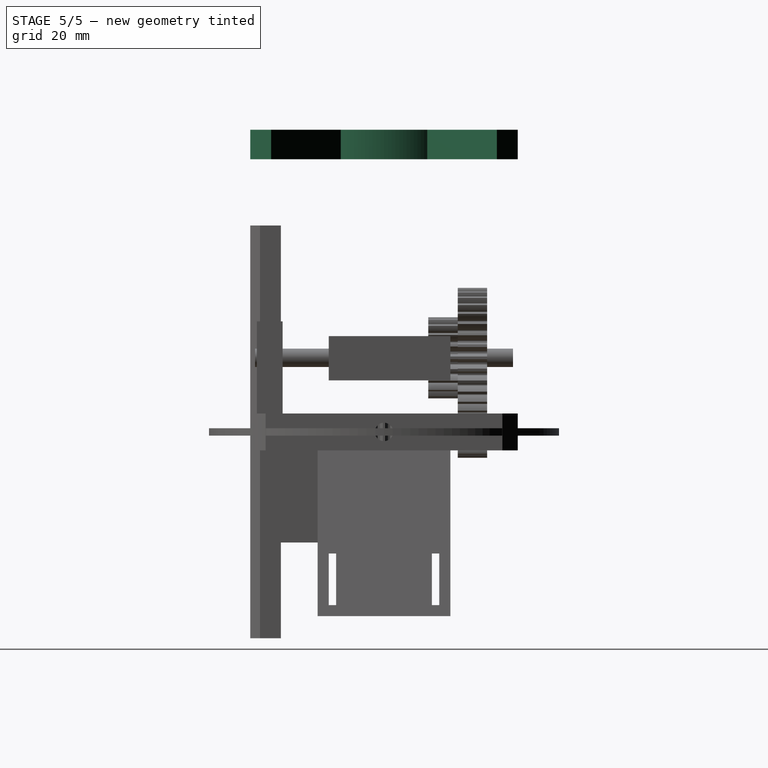
[diagram: stage 5 of 5 — right view after this stage's code; geometry added in this stage tinted green]
FEATURE [Part::Part2DObjectPython] InvoluteGear  # Draft 2D object (typed FeaturePython)
  AddendumCoefficient = 1
  DedendumCoefficient = 1.25
  ExternalGear = true
  HighPrecision = true
  Modules = 1
  NumberOfTeeth = 12
  PressureAngle = 20
  ProfileShiftCoefficient = 0
  RootFilletCoefficient = 0.375
FEATURE [PartDesign::Pad] Pad003
  Direction = (0,0,1)
  Length = 8
  Length2 = 10
  Midplane = true
  Profile = -> InvoluteGear
  ReferenceAxis = -> InvoluteGear [N_Axis]
  Type = 0
FEATURE [PartDesign::Body] Body007  label="EngrenageA1"
  Group = -> [InvoluteGear,Pad003]
  Origin = -> Origin009
  Placement = pos=(0,24,0) rot=(1,0,0;1.5708rad)
  Tip = -> Pad003
FEATURE [PartDesign::FeatureBase] Clone006
  BaseFeature = -> Body007
  Placement = pos=(0,24,0) rot=(1,0,0;1.5708rad)
FEATURE [PartDesign::Body] Body011  label="EngrenageB1"
  BaseFeature = -> Body007
  Group = -> [Clone006]
  Origin = -> Origin013
  Placement = pos=(0,0,0) rot=(0,0,1;3.14159rad)
  Tip = -> Clone006
FEATURE [Part::Cylinder] Cylinder  label="Axe AB1"
  Angle = 360
  AttacherType = Attacher::AttachEngine3D
  FirstAngle = 0
  Height = 70
  Placement = pos=(14,35,20.1) rot=(1,0,0;1.5708rad)
  Radius = 2.5
  SecondAngle = 0
FEATURE [Part::Part2DObjectPython] InvoluteGear002  # Draft 2D object (typed FeaturePython)
  AddendumCoefficient = 1
  DedendumCoefficient = 1.25
  ExternalGear = true
  HighPrecision = true
  Modules = 1
  NumberOfTeeth = 36
  PressureAngle = 20
  ProfileShiftCoefficient = 0
  RootFilletCoefficient = 0.375
FEATURE [PartDesign::Pad] Pad005
  Direction = (0,0,1)
  Length = 8
  Length2 = 10
  Midplane = true
  Profile = -> InvoluteGear002
  ReferenceAxis = -> InvoluteGear002 [N_Axis]
  Type = 0
FEATURE [PartDesign::Body] Body022  label="EngrenageA2"
  Group = -> [InvoluteGear002,Pad005]
  Origin = -> Origin024
  Placement = pos=(14,24,20.1) rot=(1,0,0;1.5708rad)
  Tip = -> Pad005
FEATURE [PartDesign::FeatureBase] Clone007
  BaseFeature = -> Body022
  Placement = pos=(14,24,20.1) rot=(1,0,0;1.5708rad)
FEATURE [PartDesign::Body] Body024  label="Montant1"
  Group = -> [Sketch013,Pad006]
  Origin = -> Origin026
  Tip = -> Pad006
FEATURE [PartDesign::FeatureBase] Clone008
  BaseFeature = -> Body024
FEATURE [PartDesign::Body] Body025  label="Montant2"
  BaseFeature = -> Body024
  Group = -> [Clone008]
  Origin = -> Origin027
  Placement = pos=(0,0,0) rot=(0,0,1;1.5708rad)
  Tip = -> Clone008
FEATURE [PartDesign::FeatureBase] Clone009
  BaseFeature = -> Body024
FEATURE [PartDesign::Body] Body005  label="Guide tube moteur 1"
  Group = -> [Sketch011,Pad002,Sketch012,Pocket008,Sketch023,Pocket015,PolarPattern]
  Origin = -> Origin007
  Placement = pos=(0,0,58) rot=(0,0,1;0rad)
  Tip = -> PolarPattern
FEATURE [PartDesign::FeatureBase] Clone003
  BaseFeature = -> Body005
  Placement = pos=(0,0,78) rot=(0,0,1;0rad)
FEATURE [PartDesign::Body] Body006  label="Guide tube moteur 2"
  BaseFeature = -> Body005
  Group = -> [Clone003]
  Origin = -> Origin008
  Placement = pos=(0,0,-136) rot=(0,0,1;0rad)
  Tip = -> Clone003
FEATURE [App::Part] Part  label="Bloc support engrenages"
  Group = -> [Body,Body024,Body025,Body026,Body027,Body038,Body039,Body040,Body041,Body042,Body043,Body044,Body005,Body006]
  Origin = -> Origin001
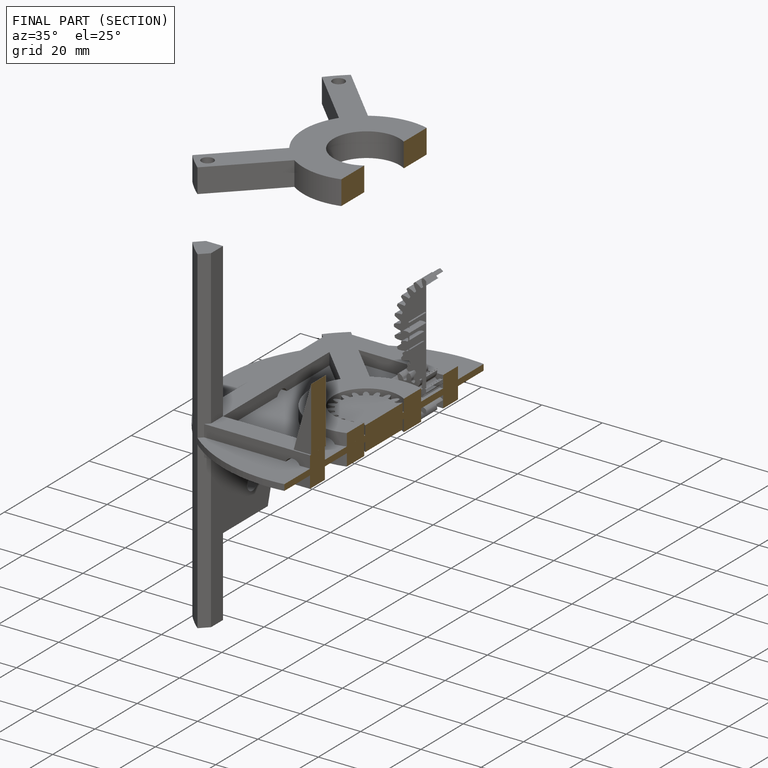
[diagram: finished part — half-section view (interior)]
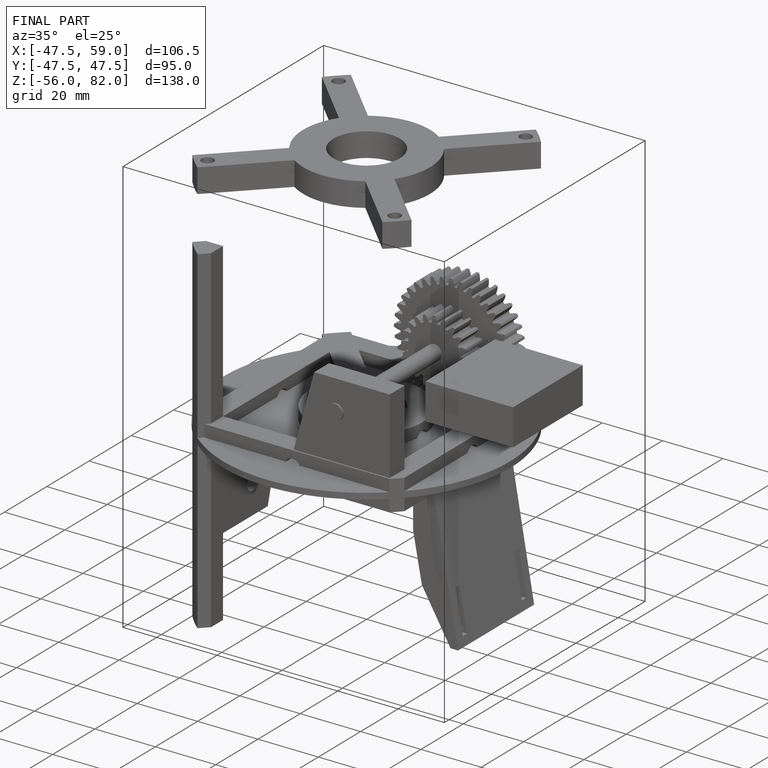
[diagram: finished part — iso view with bounding-box wireframe]
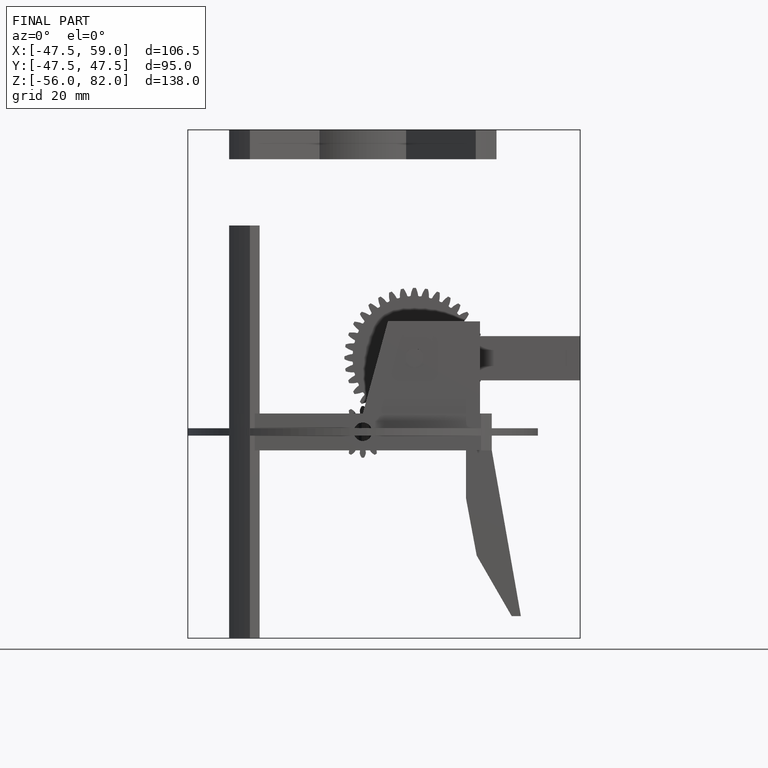
[diagram: finished part — front view with bounding-box wireframe]
